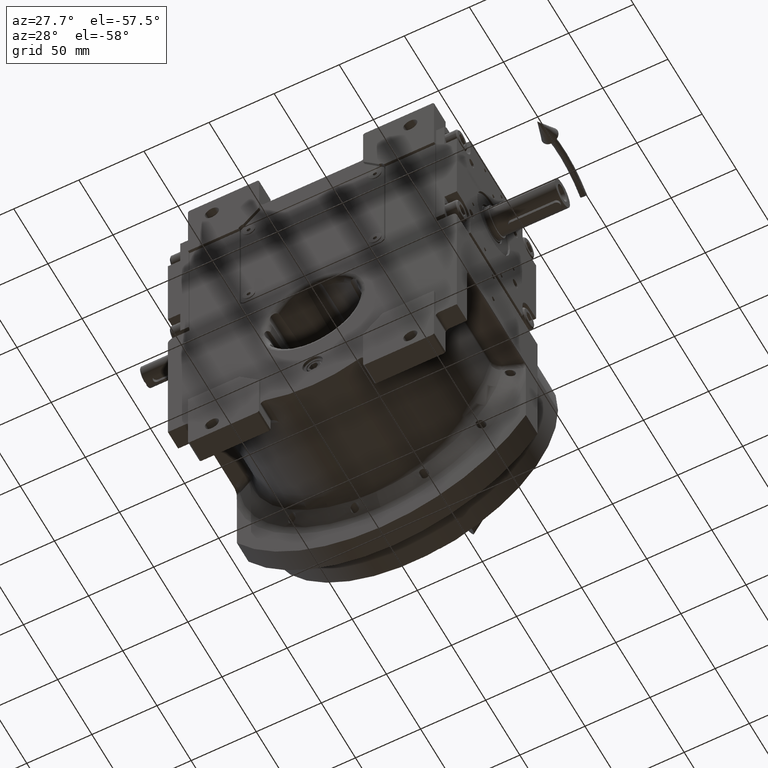
[diagram: clean part render]
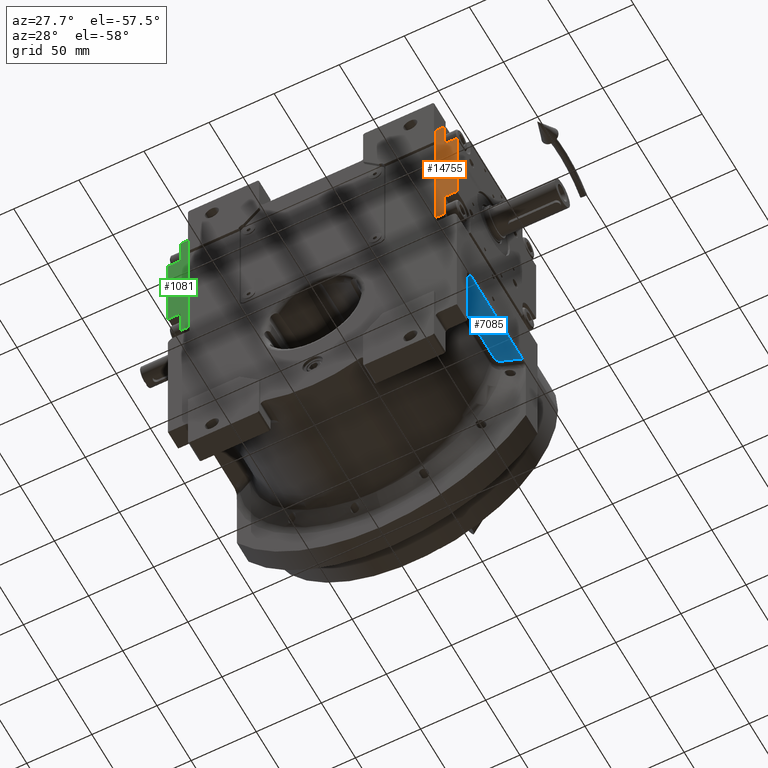
[diagram: same view with three faces highlighted in distinct colors, each labeled with its STEP entity id]
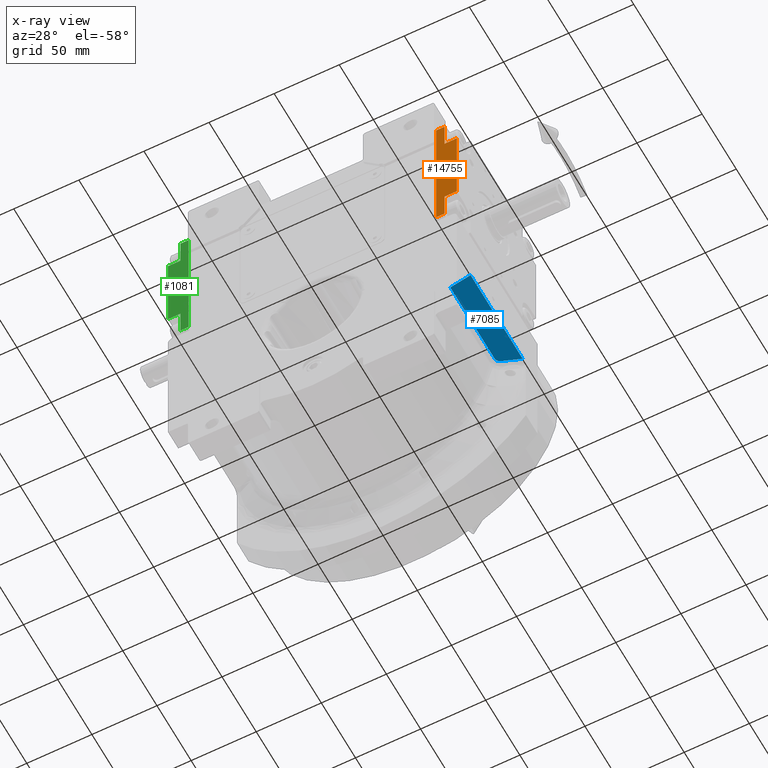
[diagram: x-ray of the same camera — body ghosted, the three highlighted faces saturated]
A machine part, auxiliary view with three faces highlighted in distinct colors.
The next image is the same camera in x-ray (body ghosted, the three faces saturated) — at least one of them is partly hidden behind the body in this view.
Their STEP definitions:

[orange] entity #14755 — the highlighted planar face has unit normal (-0, -1, 0).
#40 = VERTEX_POINT ( 'NONE', #53612 ) ;
#127 = CARTESIAN_POINT ( 'NONE',  ( -53.49999999999973710, -6.499999999998936850, 55.00000000000000711 ) ) ;
#1758 = VECTOR ( 'NONE', #63243, 1000.000000000000000 ) ;
#2640 = CARTESIAN_POINT ( 'NONE',  ( -53.50000000000000000, -15.99999999999841904, -33.50000000000001421 ) ) ;
#2963 = VERTEX_POINT ( 'NONE', #51875 ) ;
#5826 = CARTESIAN_POINT ( 'NONE',  ( -53.50000000000026290, -6.499999999998423483, -55.00000000000026290 ) ) ;
#6078 = VECTOR ( 'NONE', #39159, 1000.000000000000000 ) ;
#6800 = VERTEX_POINT ( 'NONE', #33996 ) ;
#7894 = CARTESIAN_POINT ( 'NONE',  ( -53.50000000000026290, 1.582067810090848070E-12, -55.00000000000026290 ) ) ;
#8414 = CARTESIAN_POINT ( 'NONE',  ( -53.50000000000026290, -6.499999999998423483, -33.50000000000001421 ) ) ;
#9348 = VECTOR ( 'NONE', #53606, 1000.000000000000000 ) ;
#10336 = EDGE_CURVE ( 'NONE', #2963, #20020, #31965, .T. ) ;
#11228 = EDGE_CURVE ( 'NONE', #20020, #40, #27576, .T. ) ;
#13592 = CARTESIAN_POINT ( 'NONE',  ( -53.50000000000026290, 1.582067810090848070E-12, -55.00000000000026290 ) ) ;
#14755 = ADVANCED_FACE ( 'NONE', ( #67071 ), #41269, .T. ) ;
#15769 = CARTESIAN_POINT ( 'NONE',  ( -53.50000000000000000, -15.99999999999841904, -33.50000000000001421 ) ) ;
#16435 = CARTESIAN_POINT ( 'NONE',  ( -53.50000000000026290, 1.582067810090848070E-12, -55.00000000000026290 ) ) ;
#17573 = DIRECTION ( 'NONE',  ( -2.320366121466570228E-14, 1.000000000000000000, -2.109423746787997797E-15 ) ) ;
#18458 = DIRECTION ( 'NONE',  ( 8.437694987151227573E-15, -2.109423746787996220E-15, 1.000000000000000000 ) ) ;
#18717 = LINE ( 'NONE', #50691, #18755 ) ;
#18755 = VECTOR ( 'NONE', #25259, 1000.000000000000000 ) ;
#18984 = ORIENTED_EDGE ( 'NONE', *, *, #64703, .T. ) ;
#20020 = VERTEX_POINT ( 'NONE', #45686 ) ;
#21250 = ORIENTED_EDGE ( 'NONE', *, *, #10336, .T. ) ;
#21612 = LINE ( 'NONE', #16435, #1758 ) ;
#21928 = ORIENTED_EDGE ( 'NONE', *, *, #32752, .F. ) ;
#23246 = LINE ( 'NONE', #29430, #34735 ) ;
#25259 = DIRECTION ( 'NONE',  ( 2.320366121466570228E-14, -1.000000000000000000, 2.109423746787997797E-15 ) ) ;
#25303 = VERTEX_POINT ( 'NONE', #7894 ) ;
#25720 = EDGE_CURVE ( 'NONE', #2963, #62731, #44320, .T. ) ;
#26847 = DIRECTION ( 'NONE',  ( 8.437694987151227573E-15, -2.109423746787996220E-15, 1.000000000000000000 ) ) ;
#27576 = LINE ( 'NONE', #48553, #35867 ) ;
#28051 = DIRECTION ( 'NONE',  ( 8.437694987151227573E-15, -2.109423746787996220E-15, 1.000000000000000000 ) ) ;
#29430 = CARTESIAN_POINT ( 'NONE',  ( -53.49999999999973710, -6.499999999998423483, 33.49999999999998579 ) ) ;
#29901 = DIRECTION ( 'NONE',  ( 8.437694987151227573E-15, -2.109423746787996220E-15, 1.000000000000000000 ) ) ;
#31965 = LINE ( 'NONE', #15769, #9348 ) ;
#32360 = VECTOR ( 'NONE', #18458, 1000.000000000000000 ) ;
#32752 = EDGE_CURVE ( 'NONE', #6800, #63540, #18717, .T. ) ;
#32998 = EDGE_CURVE ( 'NONE', #59447, #62731, #52032, .T. ) ;
#33996 = CARTESIAN_POINT ( 'NONE',  ( -53.49999999999973710, 1.054711873393898713E-12, 55.00000000000000711 ) ) ;
#34735 = VECTOR ( 'NONE', #28051, 1000.000000000000000 ) ;
#35867 = VECTOR ( 'NONE', #17573, 1000.000000000000000 ) ;
#37045 = ORIENTED_EDGE ( 'NONE', *, *, #66614, .T. ) ;
#39115 = LINE ( 'NONE', #13592, #32360 ) ;
#39159 = DIRECTION ( 'NONE',  ( -2.320366121466570228E-14, 1.000000000000000000, -2.109423746787997797E-15 ) ) ;
#41214 = ORIENTED_EDGE ( 'NONE', *, *, #53080, .F. ) ;
#41269 = PLANE ( 'NONE',  #49999 ) ;
#41471 = ORIENTED_EDGE ( 'NONE', *, *, #11228, .T. ) ;
#44120 = VECTOR ( 'NONE', #26847, 1000.000000000000000 ) ;
#44320 = LINE ( 'NONE', #2640, #6078 ) ;
#45686 = CARTESIAN_POINT ( 'NONE',  ( -53.49999999999947420, -15.99999999999894484, 33.49999999999998579 ) ) ;
#46821 = EDGE_LOOP ( 'NONE', ( #41214, #18984, #58229, #60769, #21250, #41471, #37045, #21928 ) ) ;
#48553 = CARTESIAN_POINT ( 'NONE',  ( -53.49999999999947420, -15.99999999999894484, 33.49999999999998579 ) ) ;
#49999 = AXIS2_PLACEMENT_3D ( 'NONE', #67737, #61185, #29901 ) ;
#50691 = CARTESIAN_POINT ( 'NONE',  ( -53.49999999999973710, 1.054711873393898713E-12, 55.00000000000000711 ) ) ;
#51875 = CARTESIAN_POINT ( 'NONE',  ( -53.50000000000000000, -15.99999999999841904, -33.50000000000001421 ) ) ;
#52032 = LINE ( 'NONE', #5826, #44120 ) ;
#53080 = EDGE_CURVE ( 'NONE', #25303, #6800, #39115, .T. ) ;
#53606 = DIRECTION ( 'NONE',  ( 8.437694987151227573E-15, -2.109423746787996220E-15, 1.000000000000000000 ) ) ;
#53612 = CARTESIAN_POINT ( 'NONE',  ( -53.49999999999973710, -6.499999999998423483, 33.49999999999998579 ) ) ;
#57562 = CARTESIAN_POINT ( 'NONE',  ( -53.50000000000026290, -6.499999999998423483, -55.00000000000026290 ) ) ;
#58229 = ORIENTED_EDGE ( 'NONE', *, *, #32998, .T. ) ;
#59447 = VERTEX_POINT ( 'NONE', #57562 ) ;
#60769 = ORIENTED_EDGE ( 'NONE', *, *, #25720, .F. ) ;
#61185 = DIRECTION ( 'NONE',  ( -1.000000000000000000, 2.320366121466565494E-14, 8.437694987151276482E-15 ) ) ;
#62731 = VERTEX_POINT ( 'NONE', #8414 ) ;
#63243 = DIRECTION ( 'NONE',  ( 2.320366121466570228E-14, -1.000000000000000000, 2.109423746787997797E-15 ) ) ;
#63540 = VERTEX_POINT ( 'NONE', #127 ) ;
#64703 = EDGE_CURVE ( 'NONE', #25303, #59447, #21612, .T. ) ;
#66614 = EDGE_CURVE ( 'NONE', #40, #63540, #23246, .T. ) ;
#67071 = FACE_OUTER_BOUND ( 'NONE', #46821, .T. ) ;
#67737 = CARTESIAN_POINT ( 'NONE',  ( -53.50000000000052580, 1.582067810090848070E-12, -58.00000000000027001 ) ) ;

[blue] entity #7085 — the highlighted planar face has unit normal (-0.2588, 0, 0.9659).
#573 = PLANE ( 'NONE',  #31542 ) ;
#1517 = CARTESIAN_POINT ( 'NONE',  ( 95.38887148343249578, 31.21878281274435096, -11.18298927895262018 ) ) ;
#1715 = LINE ( 'NONE', #16862, #20543 ) ;
#2822 = ORIENTED_EDGE ( 'NONE', *, *, #16805, .F. ) ;
#2870 = CARTESIAN_POINT ( 'NONE',  ( 95.81012505113629629, 33.26415764376714890, -11.07011472567765864 ) ) ;
#3597 = CARTESIAN_POINT ( 'NONE',  ( 108.1141480366345888, 41.10903083534700642, -7.773261703059429983 ) ) ;
#4388 = ORIENTED_EDGE ( 'NONE', *, *, #46867, .F. ) ;
#5036 = DIRECTION ( 'NONE',  ( -0.9659258262890685343, 0.000000000000000000, -0.2588190451025199068 ) ) ;
#5670 = VERTEX_POINT ( 'NONE', #11128 ) ;
#6678 = CARTESIAN_POINT ( 'NONE',  ( 98.03384768419620343, 35.54890893400985163, -10.47427004219058055 ) ) ;
#7085 = ADVANCED_FACE ( 'NONE', ( #10878 ), #573, .F. ) ;
#8768 = CARTESIAN_POINT ( 'NONE',  ( 109.4089144248324033, 41.83012586323534521, -7.426330088403169327 ) ) ;
#9097 = CARTESIAN_POINT ( 'NONE',  ( 95.38887148343249578, 31.21878281274429767, -11.18298927895262018 ) ) ;
#9856 = CARTESIAN_POINT ( 'NONE',  ( 109.4089144248324033, 41.83012586323534521, -7.426330088403169327 ) ) ;
#10878 = FACE_OUTER_BOUND ( 'NONE', #38190, .T. ) ;
#11128 = CARTESIAN_POINT ( 'NONE',  ( 111.0000000000000000, -33.50000000000000000, -7.000000000000000000 ) ) ;
#11348 = CARTESIAN_POINT ( 'NONE',  ( 98.03384768419620343, 35.54890893400985163, -10.47427004219058055 ) ) ;
#12557 = CARTESIAN_POINT ( 'NONE',  ( 99.26766393739760019, 36.22403195274370091, -10.14366997330473907 ) ) ;
#15891 = CARTESIAN_POINT ( 'NONE',  ( 95.38887148343249578, 31.21878281274435096, -11.18298927895262018 ) ) ;
#16446 = ORIENTED_EDGE ( 'NONE', *, *, #36123, .F. ) ;
#16805 = EDGE_CURVE ( 'NONE', #28955, #5670, #1715, .T. ) ;
#16862 = CARTESIAN_POINT ( 'NONE',  ( 95.38887148343249578, -33.50000000000000000, -11.18298927895262018 ) ) ;
#18725 = CARTESIAN_POINT ( 'NONE',  ( 97.11854291838389486, 34.96455119265645095, -10.71952521478621989 ) ) ;
#18953 = CARTESIAN_POINT ( 'NONE',  ( 109.4089144248324033, 41.83012586323534521, -7.426330088403169327 ) ) ;
#20174 = CARTESIAN_POINT ( 'NONE',  ( 109.7569140969559953, 42.01281329846794677, -7.333083863843030237 ) ) ;
#20543 = VECTOR ( 'NONE', #59179, 1000.000000000000000 ) ;
#21553 = CARTESIAN_POINT ( 'NONE',  ( 111.0000000000000000, -53.50000000000000000, -6.999999999999900524 ) ) ;
#24622 = CARTESIAN_POINT ( 'NONE',  ( 105.5570020197803984, 39.68902199828435329, -8.458446913203989226 ) ) ;
#25383 = CARTESIAN_POINT ( 'NONE',  ( 110.5535820616289868, 42.30804028318570431, -7.119617326073190533 ) ) ;
#25679 = ORIENTED_EDGE ( 'NONE', *, *, #43355, .F. ) ;
#28955 = VERTEX_POINT ( 'NONE', #31804 ) ;
#29051 = CARTESIAN_POINT ( 'NONE',  ( 97.70991602893579397, 35.37230181499809589, -10.56106726738833856 ) ) ;
#30887 = DIRECTION ( 'NONE',  ( -0.2588190451025199068, 0.000000000000000000, 0.9659258262890685343 ) ) ;
#31176 = VERTEX_POINT ( 'NONE', #64749 ) ;
#31542 = AXIS2_PLACEMENT_3D ( 'NONE', #21553, #30887, #5036 ) ;
#31804 = CARTESIAN_POINT ( 'NONE',  ( 95.38887147598360627, -33.49999996257090373, -11.18298928094854006 ) ) ;
#33505 = VECTOR ( 'NONE', #40467, 1000.000000000000000 ) ;
#33581 = CARTESIAN_POINT ( 'NONE',  ( 98.03384768419620343, 35.54890893400985163, -10.47427004219058055 ) ) ;
#36123 = EDGE_CURVE ( 'NONE', #52251, #58908, #60902, .T. ) ;
#38190 = EDGE_LOOP ( 'NONE', ( #51008, #16446, #61787, #4388, #2822, #25679 ) ) ;
#38405 = EDGE_CURVE ( 'NONE', #58908, #48779, #60133, .T. ) ;
#40467 = DIRECTION ( 'NONE',  ( 0.000000000000000000, -1.000000000000000000, 0.000000000000000000 ) ) ;
#41148 = EDGE_CURVE ( 'NONE', #31176, #52251, #54874, .T. ) ;
#42560 = CARTESIAN_POINT ( 'NONE',  ( 110.8468224297656093, 42.37713491783295439, -7.041043806242750058 ) ) ;
#43355 = EDGE_CURVE ( 'NONE', #48779, #28955, #66949, .T. ) ;
#44897 = CARTESIAN_POINT ( 'NONE',  ( 95.46549224356191132, 32.25976543158250109, -11.16245880815248093 ) ) ;
#46867 = EDGE_CURVE ( 'NONE', #5670, #31176, #50748, .T. ) ;
#48779 = VERTEX_POINT ( 'NONE', #15891 ) ;
#50013 = CARTESIAN_POINT ( 'NONE',  ( 96.36734396582789941, 34.17718225160570000, -10.92080836747869910 ) ) ;
#50748 = LINE ( 'NONE', #66610, #65758 ) ;
#51008 = ORIENTED_EDGE ( 'NONE', *, *, #38405, .F. ) ;
#52251 = VERTEX_POINT ( 'NONE', #18953 ) ;
#54874 = B_SPLINE_CURVE_WITH_KNOTS ( 'NONE', 3,
 ( #63524, #42560, #25383, #62155, #20174, #56993, #9856 ),
 .UNSPECIFIED., .F., .F.,
 ( 4, 1, 1, 1, 4 ),
 ( 0.000000000000000000, 0.2753862993259384995, 0.5334903165481259535, 0.7748611133753350311, 1.000000000000000000 ),
 .UNSPECIFIED. ) ;
#56993 = CARTESIAN_POINT ( 'NONE',  ( 109.5209818495052048, 41.89247284279934291, -7.396301719015939469 ) ) ;
#58908 = VERTEX_POINT ( 'NONE', #11348 ) ;
#59179 = DIRECTION ( 'NONE',  ( 0.9659258262890685343, 0.000000000000000000, 0.2588190451025199068 ) ) ;
#60133 = B_SPLINE_CURVE_WITH_KNOTS ( 'NONE', 3,
 ( #6678, #29051, #18725, #50013, #2870, #44897, #65886, #1517 ),
 .UNSPECIFIED., .F., .F.,
 ( 4, 1, 1, 1, 1, 4 ),
 ( 0.000000000000000000, 0.2082020784755349851, 0.4120856423621989673, 0.6114782827179490177, 0.8071595881855400112, 1.000000000000000000 ),
 .UNSPECIFIED. ) ;
#60406 = DIRECTION ( 'NONE',  ( 0.000000000000000000, 1.000000000000000000, 0.000000000000000000 ) ) ;
#60902 = B_SPLINE_CURVE_WITH_KNOTS ( 'NONE', 3,
 ( #8768, #3597, #24622, #66611, #12557, #33581 ),
 .UNSPECIFIED., .F., .F.,
 ( 4, 1, 1, 4 ),
 ( 0.000000000000000000, 0.3421246752677304936, 0.6752526657298970614, 1.000000000000000000 ),
 .UNSPECIFIED. ) ;
#61787 = ORIENTED_EDGE ( 'NONE', *, *, #41148, .F. ) ;
#62155 = CARTESIAN_POINT ( 'NONE',  ( 110.1362840193329902, 42.17151204824395450, -7.231431999509450037 ) ) ;
#63524 = CARTESIAN_POINT ( 'NONE',  ( 110.9999999998199911, 42.40620941354220008, -7.000000000048170357 ) ) ;
#64749 = CARTESIAN_POINT ( 'NONE',  ( 110.9999999998199911, 42.40620941354220008, -7.000000000048170357 ) ) ;
#65758 = VECTOR ( 'NONE', #60406, 1000.000000000000000 ) ;
#65886 = CARTESIAN_POINT ( 'NONE',  ( 95.39032909194878584, 31.57072801824924824, -11.18259871392780092 ) ) ;
#66610 = CARTESIAN_POINT ( 'NONE',  ( 111.0000000000000000, -33.50000000000000000, -6.999999999999920064 ) ) ;
#66611 = CARTESIAN_POINT ( 'NONE',  ( 101.7655037335390062, 37.59487724664099773, -9.474375817106368558 ) ) ;
#66949 = LINE ( 'NONE', #9097, #33505 ) ;

[green] entity #1081 — the highlighted planar face has unit normal (-0, -1, -0).
#705 = LINE ( 'NONE', #56011, #49586 ) ;
#1081 = ADVANCED_FACE ( 'NONE', ( #51248 ), #20626, .T. ) ;
#2021 = DIRECTION ( 'NONE',  ( 1.885615403823469748E-28, 1.000000000000000000, 7.549516567451080252E-15 ) ) ;
#2436 = CARTESIAN_POINT ( 'NONE',  ( -53.49999999999810996, -6.499999999999464428, 33.49999999999717204 ) ) ;
#2482 = CARTESIAN_POINT ( 'NONE',  ( -53.50000000000304112, -6.499999999999464428, -55.00000000000370903 ) ) ;
#2945 = LINE ( 'NONE', #24636, #30208 ) ;
#3273 = AXIS2_PLACEMENT_3D ( 'NONE', #30975, #31303, #66764 ) ;
#3908 = ORIENTED_EDGE ( 'NONE', *, *, #31561, .F. ) ;
#5232 = ORIENTED_EDGE ( 'NONE', *, *, #31215, .T. ) ;
#5336 = LINE ( 'NONE', #42863, #60625 ) ;
#5370 = CARTESIAN_POINT ( 'NONE',  ( -53.50000000000188294, -15.99999999999947242, -33.50000000000375167 ) ) ;
#7536 = VERTEX_POINT ( 'NONE', #44432 ) ;
#7689 = VERTEX_POINT ( 'NONE', #50892 ) ;
#13768 = LINE ( 'NONE', #2436, #58189 ) ;
#16501 = CARTESIAN_POINT ( 'NONE',  ( -53.49999999999695888, 9.436895709313830594E-13, 54.99999999999669598 ) ) ;
#16825 = VERTEX_POINT ( 'NONE', #27876 ) ;
#20626 = PLANE ( 'NONE',  #3273 ) ;
#21518 = ORIENTED_EDGE ( 'NONE', *, *, #23505, .F. ) ;
#23505 = EDGE_CURVE ( 'NONE', #7536, #16825, #24164, .T. ) ;
#24164 = LINE ( 'NONE', #34469, #44376 ) ;
#24636 = CARTESIAN_POINT ( 'NONE',  ( -53.50000000000188294, -15.99999999999947242, -33.50000000000375167 ) ) ;
#25348 = EDGE_CURVE ( 'NONE', #7536, #29070, #49863, .T. ) ;
#27876 = CARTESIAN_POINT ( 'NONE',  ( -53.49999999999695888, 9.436895709313830594E-13, 54.99999999999669598 ) ) ;
#27974 = DIRECTION ( 'NONE',  ( 1.885615403823469748E-28, 1.000000000000000000, 7.549516567451080252E-15 ) ) ;
#28181 = VERTEX_POINT ( 'NONE', #53262 ) ;
#28787 = DIRECTION ( 'NONE',  ( 5.662137425588300249E-14, 7.549516567451070786E-15, 1.000000000000000000 ) ) ;
#29070 = VERTEX_POINT ( 'NONE', #2482 ) ;
#30208 = VECTOR ( 'NONE', #28787, 1000.000000000000000 ) ;
#30975 = CARTESIAN_POINT ( 'NONE',  ( -53.50000000000330402, 5.273559366969493567E-13, -58.00000000000374456 ) ) ;
#31215 = EDGE_CURVE ( 'NONE', #66001, #66056, #13768, .T. ) ;
#31303 = DIRECTION ( 'NONE',  ( -1.000000000000000000, 6.660896834763655686E-28, 5.662137425588300249E-14 ) ) ;
#31561 = EDGE_CURVE ( 'NONE', #16825, #66056, #32679, .T. ) ;
#32185 = VECTOR ( 'NONE', #27974, 1000.000000000000000 ) ;
#32679 = LINE ( 'NONE', #16501, #50512 ) ;
#33019 = EDGE_CURVE ( 'NONE', #7689, #66001, #705, .T. ) ;
#34399 = DIRECTION ( 'NONE',  ( -1.885615403823469748E-28, -1.000000000000000000, -7.549516567451080252E-15 ) ) ;
#34469 = CARTESIAN_POINT ( 'NONE',  ( -53.50000000000304112, 5.273559366969493567E-13, -55.00000000000373745 ) ) ;
#35365 = EDGE_LOOP ( 'NONE', ( #21518, #54406, #52376, #51551, #50090, #58023, #5232, #3908 ) ) ;
#38184 = EDGE_CURVE ( 'NONE', #29070, #28181, #5336, .T. ) ;
#40679 = DIRECTION ( 'NONE',  ( 5.662137425588300249E-14, 7.549516567451070786E-15, 1.000000000000000000 ) ) ;
#42863 = CARTESIAN_POINT ( 'NONE',  ( -53.50000000000304112, -6.499999999999464428, -55.00000000000370903 ) ) ;
#43484 = VECTOR ( 'NONE', #34399, 1000.000000000000000 ) ;
#44376 = VECTOR ( 'NONE', #40679, 1000.000000000000000 ) ;
#44432 = CARTESIAN_POINT ( 'NONE',  ( -53.50000000000304112, 5.273559366969493567E-13, -55.00000000000373745 ) ) ;
#45743 = CARTESIAN_POINT ( 'NONE',  ( -53.50000000000304112, 5.273559366969493567E-13, -55.00000000000373745 ) ) ;
#49586 = VECTOR ( 'NONE', #2021, 1000.000000000000000 ) ;
#49863 = LINE ( 'NONE', #45743, #43484 ) ;
#50090 = ORIENTED_EDGE ( 'NONE', *, *, #53121, .T. ) ;
#50512 = VECTOR ( 'NONE', #64312, 1000.000000000000000 ) ;
#50892 = CARTESIAN_POINT ( 'NONE',  ( -53.49999999999810996, -15.99999999999945999, 33.49999999999675282 ) ) ;
#51248 = FACE_OUTER_BOUND ( 'NONE', #35365, .T. ) ;
#51551 = ORIENTED_EDGE ( 'NONE', *, *, #61008, .F. ) ;
#51902 = CARTESIAN_POINT ( 'NONE',  ( -53.49999999999695888, -6.499999999999062084, 54.99999999999695888 ) ) ;
#52376 = ORIENTED_EDGE ( 'NONE', *, *, #38184, .T. ) ;
#52588 = CARTESIAN_POINT ( 'NONE',  ( -53.49999999999810996, -6.499999999999464428, 33.49999999999717204 ) ) ;
#53121 = EDGE_CURVE ( 'NONE', #59729, #7689, #2945, .T. ) ;
#53262 = CARTESIAN_POINT ( 'NONE',  ( -53.50000000000188294, -6.499999999999062084, -33.50000000000375167 ) ) ;
#54406 = ORIENTED_EDGE ( 'NONE', *, *, #25348, .T. ) ;
#55077 = DIRECTION ( 'NONE',  ( 5.662137425588300249E-14, 7.549516567451070786E-15, 1.000000000000000000 ) ) ;
#56011 = CARTESIAN_POINT ( 'NONE',  ( -53.49999999999810996, -15.99999999999945999, 33.49999999999675282 ) ) ;
#58023 = ORIENTED_EDGE ( 'NONE', *, *, #33019, .T. ) ;
#58189 = VECTOR ( 'NONE', #55077, 1000.000000000000000 ) ;
#59262 = CARTESIAN_POINT ( 'NONE',  ( -53.50000000000188294, -15.99999999999947242, -33.50000000000375167 ) ) ;
#59273 = LINE ( 'NONE', #5370, #32185 ) ;
#59729 = VERTEX_POINT ( 'NONE', #59262 ) ;
#60625 = VECTOR ( 'NONE', #63493, 1000.000000000000000 ) ;
#61008 = EDGE_CURVE ( 'NONE', #59729, #28181, #59273, .T. ) ;
#63493 = DIRECTION ( 'NONE',  ( 5.662137425588300249E-14, 7.549516567451070786E-15, 1.000000000000000000 ) ) ;
#64312 = DIRECTION ( 'NONE',  ( -1.885615403823469748E-28, -1.000000000000000000, -7.549516567451080252E-15 ) ) ;
#66001 = VERTEX_POINT ( 'NONE', #52588 ) ;
#66056 = VERTEX_POINT ( 'NONE', #51902 ) ;
#66764 = DIRECTION ( 'NONE',  ( 5.662137425588300249E-14, 7.549516567451070786E-15, 1.000000000000000000 ) ) ;